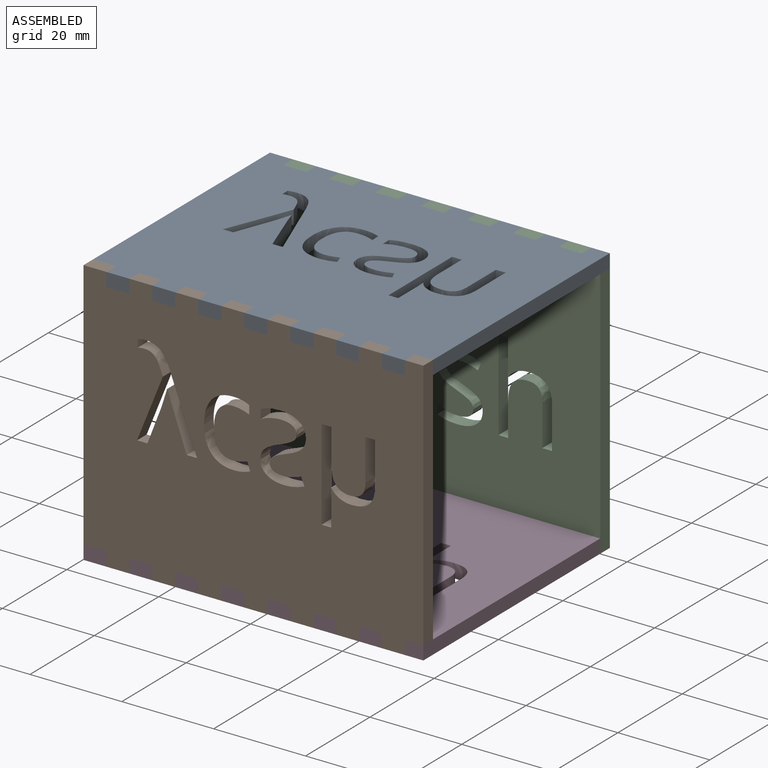
[diagram: assembled view]
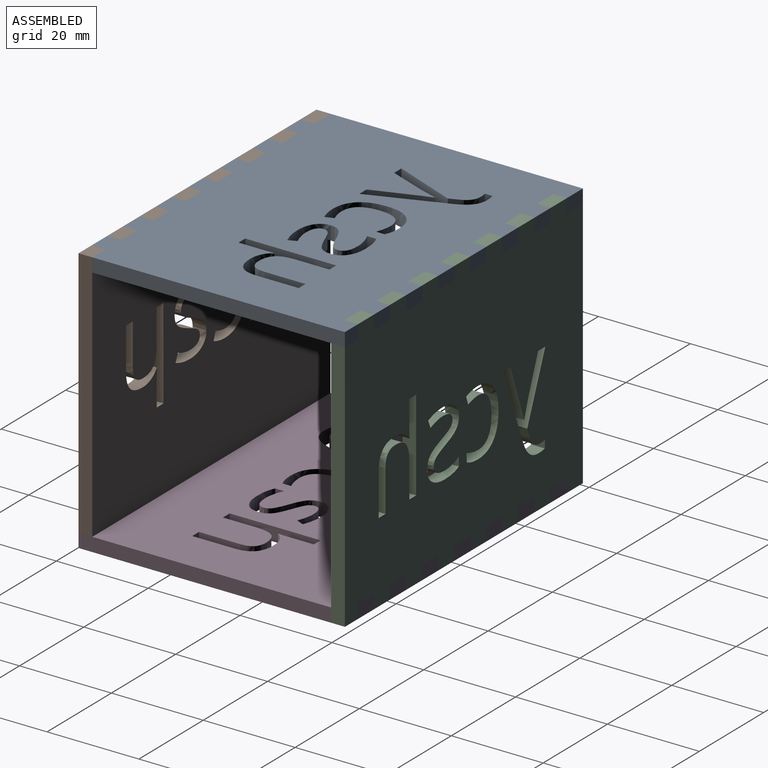
[diagram: assembled view, second angle]
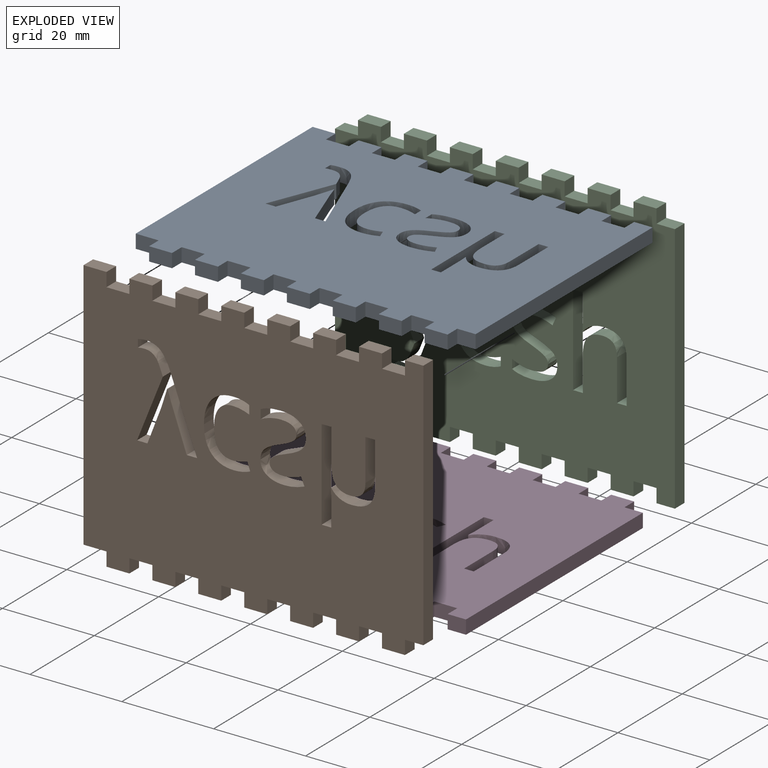
[diagram: exploded view]
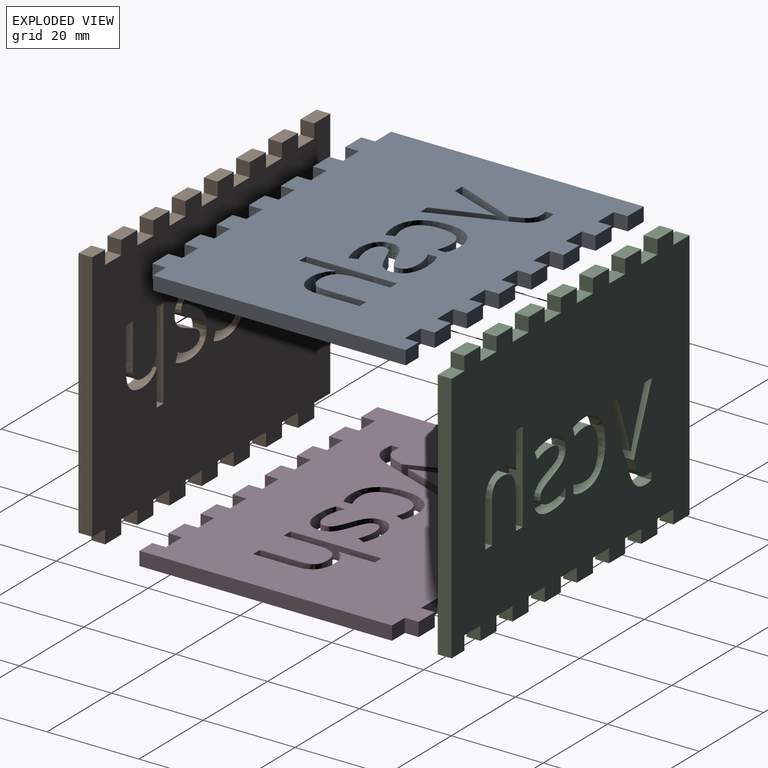
[diagram: exploded view, second angle]
ASSEMBLY  parts=4 mates=3
PART A: 136 faces, bbox 74x58x3 mm
  f0: plane 14.03x5.63mm, normal (0.93,0.37,0), area 45.3mm2, adj f1,f133,f134,f135
  f1: plane 3x2.27mm, normal (0,-1,0), area 6.8mm2, adj f0,f2,f134,f135
  f2: plane 7.95x3.05mm, normal (-0.93,-0.36,0), area 25.6mm2, adj f1,f3,f134,f135
  f3: extruded ~3.93x3mm, area 12.4mm2, adj f2,f4,f134,f135
  f4: plane 3x0.1mm, normal (0,-1,0), area 0.3mm2, adj f3,f5,f134,f135
  f5: extruded ~3x2.22mm, area 7mm2, adj f4,f6,f134,f135
  f6: extruded ~9.66x3.46mm, area 30.8mm2, adj f5,f7,f134,f135
  f7: plane 3x2.26mm, normal (0,-1,0), area 6.8mm2, adj f6,f8,f134,f135
  f8: plane 15.88x5.99mm, normal (-0.94,0.35,0), area 50.9mm2, adj f7,f9,f134,f135
  f9: extruded ~3.34x3mm, area 11.9mm2, adj f8,f10,f134,f135
  f10: extruded ~3x2.92mm, area 9.4mm2, adj f9,f11,f134,f135
  f11: extruded ~3x1.91mm, area 5.8mm2, adj f10,f12,f134,f135
  f12: plane 3x1.69mm, normal (1,0,0), area 5.1mm2, adj f11,f13,f134,f135
  f13: extruded ~3x1.56mm, area 4.7mm2, adj f12,f14,f134,f135
  f14: extruded ~3.11x3mm, area 12.7mm2, adj f13,f133,f134,f135
  f15: extruded ~3.52x3mm, area 10.9mm2, adj f16,f129,f134,f135
  f16: extruded ~4.69x3mm, area 15.6mm2, adj f15,f17,f134,f135
  f17: extruded ~5.28x3mm, area 17mm2, adj f16,f18,f134,f135
  f18: extruded ~5.41x3mm, area 17.4mm2, adj f17,f19,f134,f135
  f19: extruded ~4.8x3mm, area 16mm2, adj f18,f20,f134,f135
  f20: extruded ~3x2.01mm, area 6.1mm2, adj f19,f21,f134,f135
  f21: extruded ~3x1.58mm, area 5mm2, adj f20,f22,f134,f135
  f22: plane 3x1.79mm, normal (-0.94,0.34,0), area 5.7mm2, adj f21,f23,f134,f135
  f23: extruded ~3x1.53mm, area 4.8mm2, adj f22,f24,f134,f135
  f24: extruded ~3x1.46mm, area 4.4mm2, adj f23,f25,f134,f135
  f25: extruded ~5.42x4.25mm, area 23.6mm2, adj f24,f26,f134,f135
  f26: extruded ~3.94x3mm, area 12.4mm2, adj f25,f27,f134,f135
  f27: extruded ~3.07x3mm, area 10.5mm2, adj f26,f28,f134,f135
  f28: extruded ~3.58x3mm, area 11mm2, adj f27,f129,f134,f135
  f29: extruded ~3x2.31mm, area 7.6mm2, adj f30,f130,f134,f135
  f30: extruded ~3x3mm, area 10.4mm2, adj f29,f31,f134,f135
  f31: extruded ~4.07x3mm, area 12.8mm2, adj f30,f32,f134,f135
  f32: extruded ~4.33x3mm, area 13.4mm2, adj f31,f33,f134,f135
  f33: plane 3x1.96mm, normal (1,0,0), area 5.9mm2, adj f32,f34,f134,f135
  f34: extruded ~3x2.16mm, area 6.9mm2, adj f33,f35,f134,f135
  f35: extruded ~3x2.22mm, area 6.7mm2, adj f34,f36,f134,f135
  f36: extruded ~3x2.54mm, area 7.9mm2, adj f35,f37,f134,f135
  f37: extruded ~3x1.61mm, area 5.8mm2, adj f36,f38,f134,f135
  f38: extruded ~3x1.39mm, area 4.9mm2, adj f37,f39,f134,f135
  f39: extruded ~3x2.76mm, area 9.3mm2, adj f38,f40,f134,f135
  f40: extruded ~3x2.77mm, area 9.1mm2, adj f39,f41,f134,f135
  f41: extruded ~3x1.23mm, area 5.2mm2, adj f40,f42,f134,f135
  f42: extruded ~3x1.64mm, area 5.1mm2, adj f41,f43,f134,f135
  f43: extruded ~3x2.69mm, area 9.5mm2, adj f42,f44,f134,f135
  f44: extruded ~3.8x3mm, area 12mm2, adj f43,f45,f134,f135
  f45: extruded ~4.41x3mm, area 13.6mm2, adj f44,f46,f134,f135
  f46: plane 3x1.72mm, normal (-0.92,0.4,0), area 5.6mm2, adj f45,f47,f134,f135
  f47: extruded ~3.8x3mm, area 11.8mm2, adj f46,f48,f134,f135
  f48: extruded ~3x2.27mm, area 7mm2, adj f47,f49,f134,f135
  f49: extruded ~3x1.3mm, area 4.7mm2, adj f48,f50,f134,f135
  f50: extruded ~3x0.96mm, area 3mm2, adj f49,f51,f134,f135
  f51: extruded ~3x0.92mm, area 3.6mm2, adj f50,f52,f134,f135
  f52: extruded ~3x2.44mm, area 8mm2, adj f51,f130,f134,f135
  f53: plane 3x2.11mm, normal (0,1,0), area 6.3mm2, adj f54,f131,f134,f135
  f54: plane 9.02x3mm, normal (1,0,0), area 27.1mm2, adj f53,f55,f134,f135
  f55: extruded ~3x2.54mm, area 8.2mm2, adj f54,f56,f134,f135
  f56: extruded ~3x2.43mm, area 8mm2, adj f55,f57,f134,f135
  f57: extruded ~3.21x3mm, area 10.6mm2, adj f56,f58,f134,f135
  f58: extruded ~3.92x3mm, area 12.4mm2, adj f57,f59,f134,f135
  f59: plane 7.29x3mm, normal (-1,0,0), area 21.9mm2, adj f58,f60,f134,f135
  f60: plane 3x2.11mm, normal (0,1,0), area 6.3mm2, adj f59,f61,f134,f135
  f61: plane 19.8x3mm, normal (1,0,0), area 59.4mm2, adj f60,f62,f134,f135
  f62: plane 3x2.11mm, normal (0,-1,0), area 6.3mm2, adj f61,f63,f134,f135
  f63: plane 5.99x3mm, normal (-1,0,0), area 18mm2, adj f62,f64,f134,f135
  f64: extruded ~3x1.8mm, area 5.4mm2, adj f63,f65,f134,f135
  f65: plane 3x0.13mm, normal (0,-1,0), area 0.4mm2, adj f64,f66,f134,f135
  f66: extruded ~3x1.78mm, area 7.2mm2, adj f65,f67,f134,f135
  f67: extruded ~3x2.63mm, area 8.1mm2, adj f66,f68,f134,f135
  f68: extruded ~3.84x3mm, area 12.4mm2, adj f67,f69,f134,f135
  f69: extruded ~3.86x3mm, area 12.6mm2, adj f68,f131,f134,f135
  f70: plane 55x3mm, normal (-1,0,0), area 165mm2, adj f71,f132,f134,f135
  f71: plane 5x3mm, normal (0,-1,0), area 15mm2, adj f70,f72,f134,f135
  f72: plane 3x3mm, normal (1,0,0), area 9mm2, adj f71,f73,f134,f135
  f73: plane 5x3mm, normal (0,-1,0), area 15mm2, adj f72,f74,f134,f135
  f74: plane 3x3mm, normal (-1,0,0), area 9mm2, adj f73,f75,f134,f135
  f75: plane 5x3mm, normal (0,-1,0), area 15mm2, adj f74,f76,f134,f135
  f76: plane 3x3mm, normal (1,0,0), area 9mm2, adj f75,f77,f134,f135
  f77: plane 5x3mm, normal (0,-1,0), area 15mm2, adj f76,f78,f134,f135
  f78: plane 3x3mm, normal (-1,0,0), area 9mm2, adj f77,f79,f134,f135
  f79: plane 5x3mm, normal (0,-1,0), area 15mm2, adj f78,f80,f134,f135
  f80: plane 3x3mm, normal (1,0,0), area 9mm2, adj f79,f81,f134,f135
  f81: plane 5x3mm, normal (0,-1,0), area 15mm2, adj f80,f82,f134,f135
  f82: plane 3x3mm, normal (-1,0,0), area 9mm2, adj f81,f83,f134,f135
  f83: plane 5x3mm, normal (0,-1,0), area 15mm2, adj f82,f84,f134,f135
  f84: plane 3x3mm, normal (1,0,0), area 9mm2, adj f83,f85,f134,f135
  f85: plane 5x3mm, normal (0,-1,0), area 15mm2, adj f84,f86,f134,f135
  f86: plane 3x3mm, normal (-1,0,0), area 9mm2, adj f85,f87,f134,f135
  f87: plane 5x3mm, normal (0,-1,0), area 15mm2, adj f86,f88,f134,f135
  f88: plane 3x3mm, normal (1,0,0), area 9mm2, adj f87,f89,f134,f135
  f89: plane 5x3mm, normal (0,-1,0), area 15mm2, adj f88,f90,f134,f135
  f90: plane 3x3mm, normal (-1,0,0), area 9mm2, adj f89,f91,f134,f135
  f91: plane 5x3mm, normal (0,-1,0), area 15mm2, adj f90,f92,f134,f135
  f92: plane 3x3mm, normal (1,0,0), area 9mm2, adj f91,f93,f134,f135
  f93: plane 5x3mm, normal (0,-1,0), area 15mm2, adj f92,f94,f134,f135
  f94: plane 3x3mm, normal (-1,0,0), area 9mm2, adj f93,f95,f134,f135
  f95: plane 5x3mm, normal (0,-1,0), area 15mm2, adj f94,f96,f134,f135
  f96: plane 3x3mm, normal (1,0,0), area 9mm2, adj f95,f97,f134,f135
  f97: plane 5x3mm, normal (0,-1,0), area 15mm2, adj f96,f98,f134,f135
  f98: plane 3x3mm, normal (-1,0,0), area 9mm2, adj f97,f99,f134,f135
  f99: plane 4x3mm, normal (0,-1,0), area 12mm2, adj f98,f100,f134,f135
  f100: plane 55x3mm, normal (1,0,0), area 165mm2, adj f99,f101,f134,f135
  f101: plane 4x3mm, normal (0,1,0), area 12mm2, adj f100,f102,f134,f135
  f102: plane 3x3mm, normal (1,0,0), area 9mm2, adj f101,f103,f134,f135
  f103: plane 5x3mm, normal (0,1,0), area 15mm2, adj f102,f104,f134,f135
  f104: plane 3x3mm, normal (-1,0,0), area 9mm2, adj f103,f105,f134,f135
  f105: plane 5x3mm, normal (0,1,0), area 15mm2, adj f104,f106,f134,f135
  f106: plane 3x3mm, normal (1,0,0), area 9mm2, adj f105,f107,f134,f135
  f107: plane 5x3mm, normal (0,1,0), area 15mm2, adj f106,f108,f134,f135
  f108: plane 3x3mm, normal (-1,0,0), area 9mm2, adj f107,f109,f134,f135
  f109: plane 5x3mm, normal (0,1,0), area 15mm2, adj f108,f110,f134,f135
  f110: plane 3x3mm, normal (1,0,0), area 9mm2, adj f109,f111,f134,f135
  f111: plane 5x3mm, normal (0,1,0), area 15mm2, adj f110,f112,f134,f135
  f112: plane 3x3mm, normal (-1,0,0), area 9mm2, adj f111,f113,f134,f135
  f113: plane 5x3mm, normal (0,1,0), area 15mm2, adj f112,f114,f134,f135
  f114: plane 3x3mm, normal (1,0,0), area 9mm2, adj f113,f115,f134,f135
  f115: plane 5x3mm, normal (0,1,0), area 15mm2, adj f114,f116,f134,f135
  f116: plane 3x3mm, normal (-1,0,0), area 9mm2, adj f115,f117,f134,f135
  f117: plane 5x3mm, normal (0,1,0), area 15mm2, adj f116,f118,f134,f135
  f118: plane 3x3mm, normal (1,0,0), area 9mm2, adj f117,f119,f134,f135
  f119: plane 5x3mm, normal (0,1,0), area 15mm2, adj f118,f120,f134,f135
  f120: plane 3x3mm, normal (-1,0,0), area 9mm2, adj f119,f121,f134,f135
  f121: plane 5x3mm, normal (0,1,0), area 15mm2, adj f120,f122,f134,f135
  f122: plane 3x3mm, normal (1,0,0), area 9mm2, adj f121,f123,f134,f135
  f123: plane 5x3mm, normal (0,1,0), area 15mm2, adj f122,f124,f134,f135
  f124: plane 3x3mm, normal (-1,0,0), area 9mm2, adj f123,f125,f134,f135
  f125: plane 5x3mm, normal (0,1,0), area 15mm2, adj f124,f126,f134,f135
  f126: plane 3x3mm, normal (1,0,0), area 9mm2, adj f125,f127,f134,f135
  f127: plane 5x3mm, normal (0,1,0), area 15mm2, adj f126,f128,f134,f135
  f128: plane 3x3mm, normal (-1,0,0), area 9mm2, adj f127,f132,f134,f135
  f129: plane 3x1.87mm, normal (-1,0,0), area 5.6mm2, adj f15,f28,f134,f135
  f130: extruded ~3.35x3mm, area 11.5mm2, adj f29,f52,f134,f135
  f131: plane 9.1x3mm, normal (-1,0,0), area 27.3mm2, adj f53,f69,f134,f135
  f132: plane 5x3mm, normal (0,1,0), area 15mm2, adj f70,f128,f134,f135
  f133: plane 3x1.98mm, normal (0.93,-0.37,0), area 6.4mm2, adj f0,f14,f134,f135
  f134: plane 74x58mm, normal (0,0,1), area 3800.1mm2, adj f0,f1,f2,f3,f4,f5,f6,f7
  f135: plane 74x58mm, normal (0,0,-1), area 3800.1mm2, adj f0,f1,f2,f3,f4,f5,f6,f7
PART B: same geometry as A
PART C: same geometry as A
PART D: same geometry as A
PLACE A rot(axis=(-1,0,0),180deg) t=(79.14,-27.36,88.21)mm
PLACE B rot(axis=(-1,0,0),90deg) t=(79.14,-57.86,60.71)mm
PLACE C rot(axis=(1,0,0),90deg) t=(79.14,0.14,57.71)mm
PLACE D t=(79.14,-30.36,30.21)mm
MATE pin_slot C.f135 <-> D.f103  axis (0,1,0) through (109.64,0.14,33.21)mm
MATE pin_slot D.f97 <-> B.f134  axis (0,-1,0) through (109.64,-54.86,30.21)mm
MATE pin_slot A.f132 <-> B.f134  axis (0,-1,0) through (44.64,-54.86,88.21)mm
